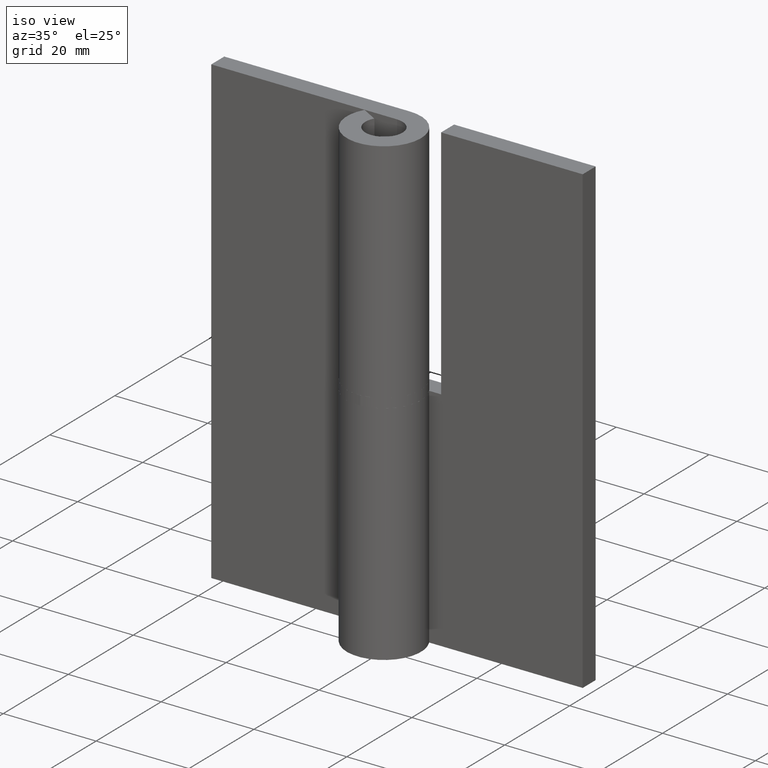
[diagram: clean part render]
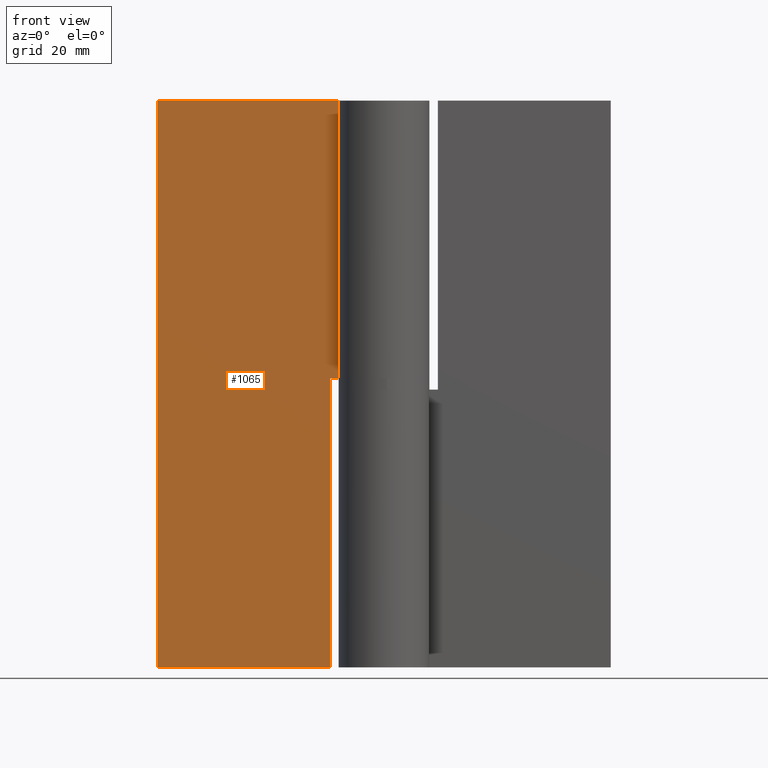
[diagram: tour spotlight — one face highlighted and labeled with its STEP entity id]
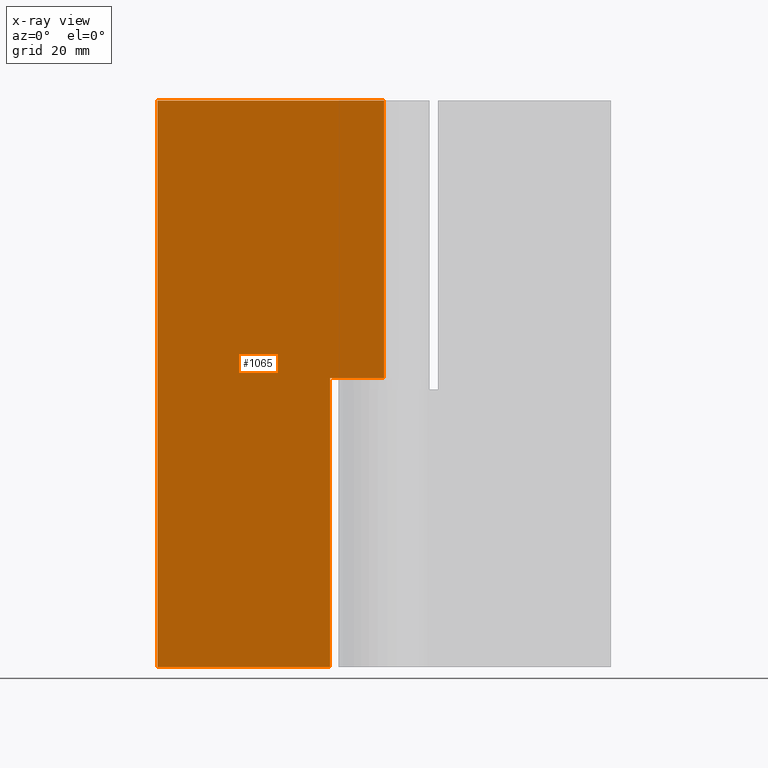
[diagram: x-ray of the same camera — body ghosted, this tour face saturated]
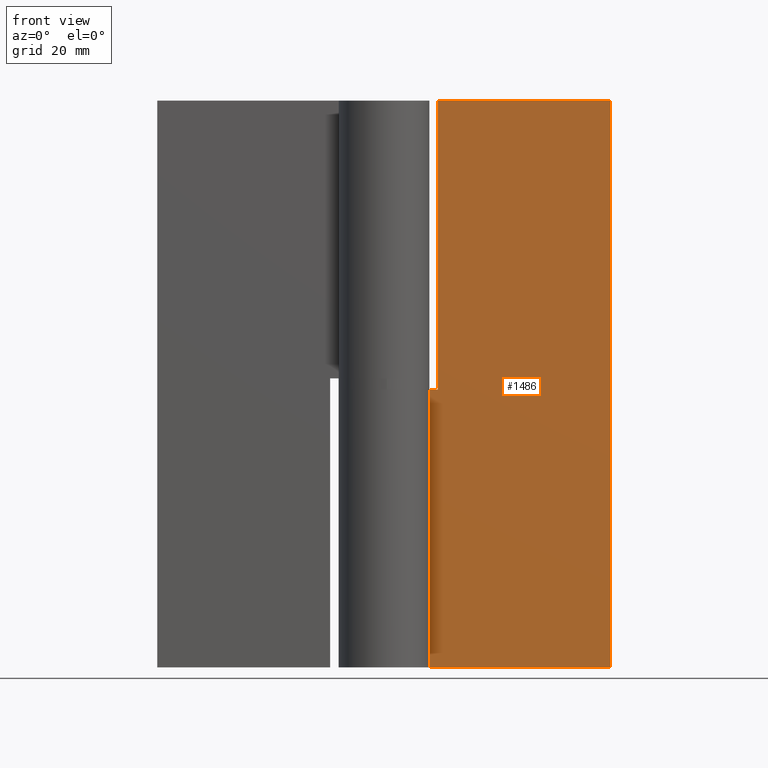
[diagram: tour spotlight — one face highlighted and labeled with its STEP entity id]
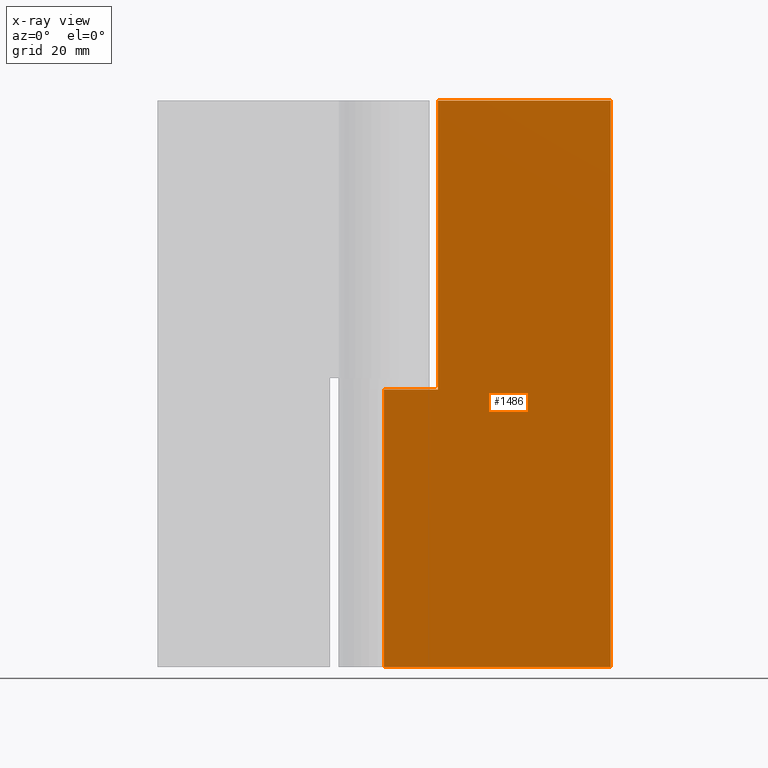
[diagram: x-ray of the same camera — body ghosted, this tour face saturated]
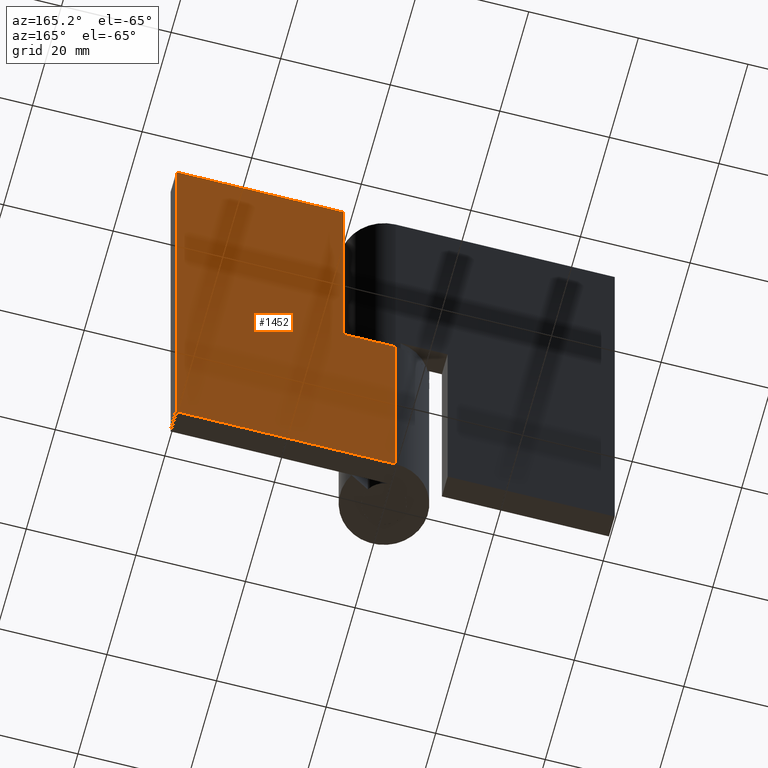
[diagram: tour spotlight — one face highlighted and labeled with its STEP entity id]
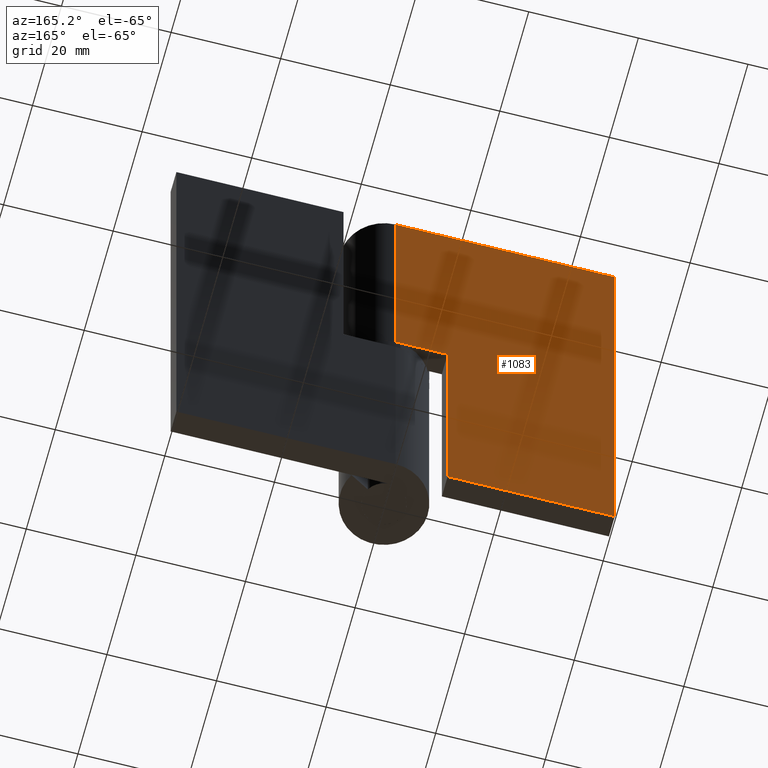
[diagram: tour spotlight — one face highlighted and labeled with its STEP entity id]
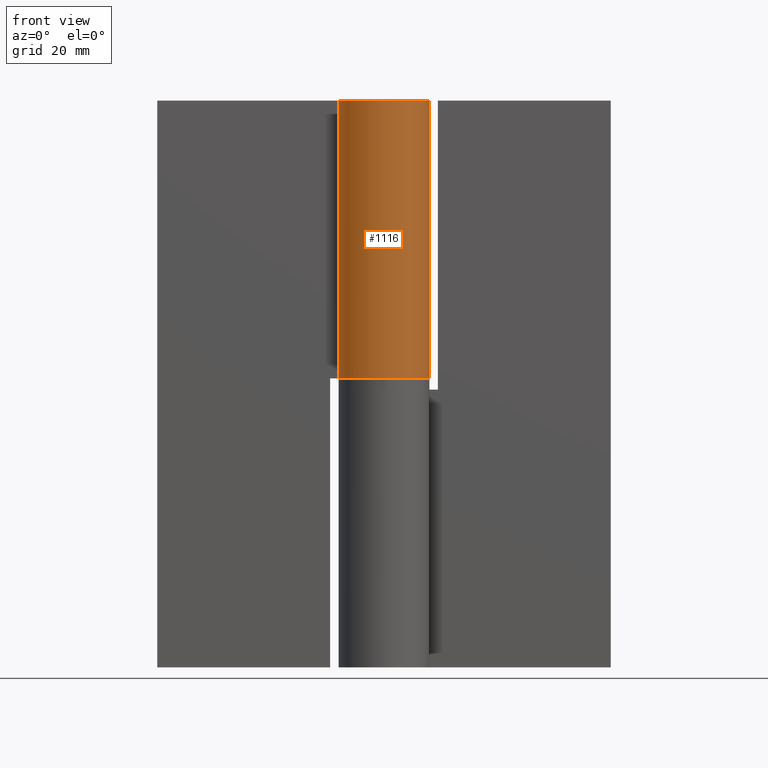
[diagram: tour spotlight — one face highlighted and labeled with its STEP entity id]
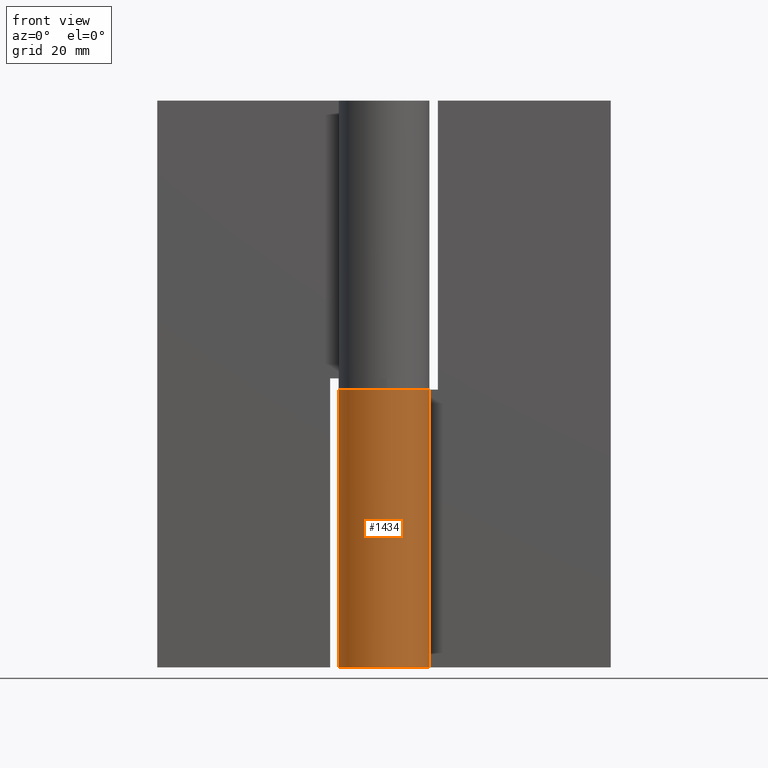
[diagram: tour spotlight — one face highlighted and labeled with its STEP entity id]
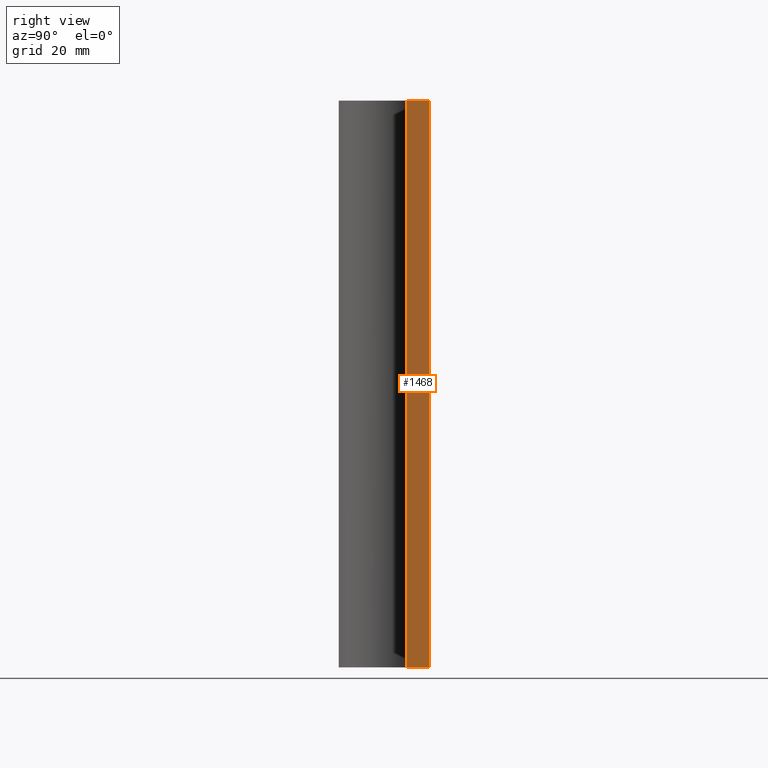
[diagram: tour spotlight — one face highlighted and labeled with its STEP entity id]
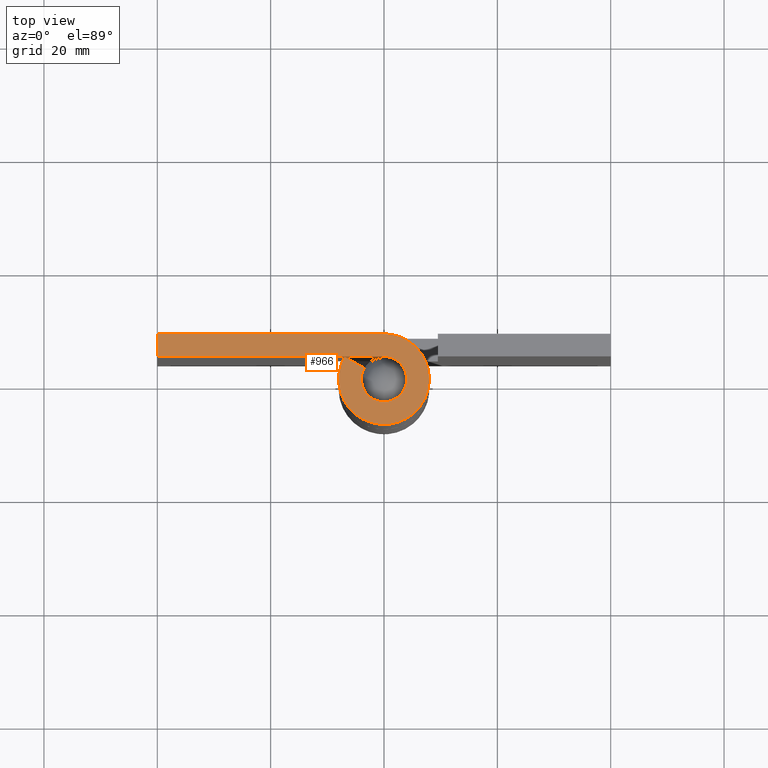
[diagram: tour spotlight — one face highlighted and labeled with its STEP entity id]
A machine part: a face-by-face anatomy tour. The part has 30 B-rep faces; the first image is the clean iso view, then the 8 largest visible faces are spotlighted one at a time (largest first), each with its STEP entity span.

Face 1 — front view, entity #1065. An x-ray twin of the same camera follows (body ghosted, this face saturated) — the face is partly hidden behind the body. In plain terms, the highlighted face is a freeform B-spline surface patch.
Definition (entity closure, byte-faithful):
#790=CARTESIAN_POINT('',(-9.500000000000000,4.0,0.0));
#791=VERTEX_POINT('',#790);
#804=CARTESIAN_POINT('',(-9.500000000000000,4.0,51.0));
#805=VERTEX_POINT('',#804);
#811=CARTESIAN_POINT('',(-9.500000000000000,4.0,0.0));
#812=CARTESIAN_POINT('',(-9.500000000000000,4.0,51.0));
#813=QUASI_UNIFORM_CURVE('',1,(#811,#812),.UNSPECIFIED.,.F.,.U.);
#814=EDGE_CURVE('',#791,#805,#813,.T.);
#854=CARTESIAN_POINT('',(0.0,4.0,51.0));
#855=VERTEX_POINT('',#854);
#875=CARTESIAN_POINT('',(-9.500000000000000,4.0,51.0));
#876=CARTESIAN_POINT('',(0.0,4.0,51.0));
#877=QUASI_UNIFORM_CURVE('',1,(#875,#876),.UNSPECIFIED.,.F.,.U.);
#878=EDGE_CURVE('',#805,#855,#877,.T.);
#931=CARTESIAN_POINT('',(-39.999993000000003,4.0,100.0));
#932=VERTEX_POINT('',#931);
#938=CARTESIAN_POINT('',(0.0,4.0,100.0));
#939=VERTEX_POINT('',#938);
#940=CARTESIAN_POINT('',(-39.999993000000003,4.0,100.0));
#941=CARTESIAN_POINT('',(0.0,4.0,100.0));
#942=QUASI_UNIFORM_CURVE('',1,(#940,#941),.UNSPECIFIED.,.F.,.U.);
#943=EDGE_CURVE('',#932,#939,#942,.T.);
#980=CARTESIAN_POINT('',(-39.999993000000003,4.0,0.0));
#981=VERTEX_POINT('',#980);
#987=CARTESIAN_POINT('',(-39.999993000000003,4.0,0.0));
#988=CARTESIAN_POINT('',(-39.999993000000003,4.0,100.0));
#989=QUASI_UNIFORM_CURVE('',1,(#987,#988),.UNSPECIFIED.,.F.,.U.);
#990=EDGE_CURVE('',#981,#932,#989,.T.);
#1006=CARTESIAN_POINT('',(-39.999993000000003,4.0,0.0));
#1007=CARTESIAN_POINT('',(-9.500000000000000,4.0,0.0));
#1008=QUASI_UNIFORM_CURVE('',1,(#1006,#1007),.UNSPECIFIED.,.F.,.U.);
#1009=EDGE_CURVE('',#981,#791,#1008,.T.);
#1037=CARTESIAN_POINT('',(0.0,4.0,51.0));
#1038=CARTESIAN_POINT('',(0.0,4.0,100.0));
#1039=QUASI_UNIFORM_CURVE('',1,(#1037,#1038),.UNSPECIFIED.,.F.,.U.);
#1040=EDGE_CURVE('',#855,#939,#1039,.T.);
#1052=CARTESIAN_POINT('',(-41.997992197330937,4.0,104.994999806180600));
#1053=CARTESIAN_POINT('',(-41.997992197330937,4.0,-4.995002488389611));
#1054=CARTESIAN_POINT('',(1.998000627842157,4.0,104.994999806180600));
#1055=CARTESIAN_POINT('',(1.998000627842157,4.0,-4.995002488389611));
#1056=B_SPLINE_SURFACE_WITH_KNOTS('',1,1,((#1052,#1054),(#1053,#1055)),.UNSPECIFIED.,.F.,.F.,.U.,(2,2),(2,2),(0.0,109.990002294570200),(0.0,43.995992825173097),.UNSPECIFIED.);
#1057=ORIENTED_EDGE('',*,*,#1009,.T.);
#1058=ORIENTED_EDGE('',*,*,#814,.T.);
#1059=ORIENTED_EDGE('',*,*,#878,.T.);
#1060=ORIENTED_EDGE('',*,*,#1040,.T.);
#1061=ORIENTED_EDGE('',*,*,#943,.F.);
#1062=ORIENTED_EDGE('',*,*,#990,.F.);
#1063=EDGE_LOOP('',(#1057,#1058,#1059,#1060,#1061,#1062));
#1064=FACE_OUTER_BOUND('',#1063,.T.);
#1065=ADVANCED_FACE('',(#1064),#1056,.T.);

Face 2 — front view, entity #1486. An x-ray twin of the same camera follows (body ghosted, this face saturated) — the face is partly hidden behind the body. In plain terms, the highlighted face is a freeform B-spline surface patch.
Definition (entity closure, byte-faithful):
#1175=CARTESIAN_POINT('',(9.500000000000000,4.0,49.0));
#1176=VERTEX_POINT('',#1175);
#1177=CARTESIAN_POINT('',(9.500000000000000,4.0,100.0));
#1178=VERTEX_POINT('',#1177);
#1179=CARTESIAN_POINT('',(9.500000000000000,4.0,49.0));
#1180=CARTESIAN_POINT('',(9.500000000000000,4.0,100.0));
#1181=QUASI_UNIFORM_CURVE('',1,(#1179,#1180),.UNSPECIFIED.,.F.,.U.);
#1182=EDGE_CURVE('',#1176,#1178,#1181,.T.);
#1211=CARTESIAN_POINT('',(0.0,4.0,49.0));
#1212=VERTEX_POINT('',#1211);
#1213=CARTESIAN_POINT('',(0.0,4.0,49.0));
#1214=CARTESIAN_POINT('',(9.500000000000000,4.0,49.0));
#1215=QUASI_UNIFORM_CURVE('',1,(#1213,#1214),.UNSPECIFIED.,.F.,.U.);
#1216=EDGE_CURVE('',#1212,#1176,#1215,.T.);
#1289=CARTESIAN_POINT('',(40.0,4.0,100.0));
#1290=VERTEX_POINT('',#1289);
#1291=CARTESIAN_POINT('',(9.500000000000000,4.0,100.0));
#1292=CARTESIAN_POINT('',(40.0,4.0,100.0));
#1293=QUASI_UNIFORM_CURVE('',1,(#1291,#1292),.UNSPECIFIED.,.F.,.U.);
#1294=EDGE_CURVE('',#1178,#1290,#1293,.T.);
#1311=CARTESIAN_POINT('',(0.0,4.0,0.0));
#1312=VERTEX_POINT('',#1311);
#1367=CARTESIAN_POINT('',(40.0,4.0,0.0));
#1368=VERTEX_POINT('',#1367);
#1374=CARTESIAN_POINT('',(0.0,4.0,0.0));
#1375=CARTESIAN_POINT('',(40.0,4.0,0.0));
#1376=QUASI_UNIFORM_CURVE('',1,(#1374,#1375),.UNSPECIFIED.,.F.,.U.);
#1377=EDGE_CURVE('',#1312,#1368,#1376,.T.);
#1459=CARTESIAN_POINT('',(40.0,4.0,0.0));
#1460=CARTESIAN_POINT('',(40.0,4.0,100.0));
#1461=QUASI_UNIFORM_CURVE('',1,(#1459,#1460),.UNSPECIFIED.,.F.,.U.);
#1462=EDGE_CURVE('',#1368,#1290,#1461,.T.);
#1469=CARTESIAN_POINT('',(-1.997999922472239,4.0,104.994999806180600));
#1470=CARTESIAN_POINT('',(-1.997999922472239,4.0,-4.995002488389611));
#1471=CARTESIAN_POINT('',(41.998000995355838,4.0,104.994999806180600));
#1472=CARTESIAN_POINT('',(41.998000995355838,4.0,-4.995002488389611));
#1473=B_SPLINE_SURFACE_WITH_KNOTS('',1,1,((#1469,#1471),(#1470,#1472)),.UNSPECIFIED.,.F.,.F.,.U.,(2,2),(2,2),(0.0,109.990002294570200),(0.0,43.996000917828077),.UNSPECIFIED.);
#1474=ORIENTED_EDGE('',*,*,#1182,.F.);
#1475=ORIENTED_EDGE('',*,*,#1216,.F.);
#1476=CARTESIAN_POINT('',(0.0,4.0,0.0));
#1477=CARTESIAN_POINT('',(0.0,4.0,49.0));
#1478=QUASI_UNIFORM_CURVE('',1,(#1476,#1477),.UNSPECIFIED.,.F.,.U.);
#1479=EDGE_CURVE('',#1312,#1212,#1478,.T.);
#1480=ORIENTED_EDGE('',*,*,#1479,.F.);
#1481=ORIENTED_EDGE('',*,*,#1377,.T.);
#1482=ORIENTED_EDGE('',*,*,#1462,.T.);
#1483=ORIENTED_EDGE('',*,*,#1294,.F.);
#1484=EDGE_LOOP('',(#1474,#1475,#1480,#1481,#1482,#1483));
#1485=FACE_OUTER_BOUND('',#1484,.T.);
#1486=ADVANCED_FACE('',(#1485),#1473,.T.);

Face 3 — auxiliary view, entity #1452. In plain terms, the highlighted face is a freeform B-spline surface patch.
Definition (entity closure, byte-faithful):
#1184=CARTESIAN_POINT('',(9.500000000000000,8.0,100.0));
#1185=VERTEX_POINT('',#1184);
#1191=CARTESIAN_POINT('',(9.500000000000000,8.0,49.0));
#1192=VERTEX_POINT('',#1191);
#1193=CARTESIAN_POINT('',(9.500000000000000,8.0,49.0));
#1194=CARTESIAN_POINT('',(9.500000000000000,8.0,100.0));
#1195=QUASI_UNIFORM_CURVE('',1,(#1193,#1194),.UNSPECIFIED.,.F.,.U.);
#1196=EDGE_CURVE('',#1192,#1185,#1195,.T.);
#1219=CARTESIAN_POINT('',(0.0,8.0,49.0));
#1220=VERTEX_POINT('',#1219);
#1221=CARTESIAN_POINT('',(0.0,8.0,49.0));
#1222=CARTESIAN_POINT('',(9.500000000000000,8.0,49.0));
#1223=QUASI_UNIFORM_CURVE('',1,(#1221,#1222),.UNSPECIFIED.,.F.,.U.);
#1224=EDGE_CURVE('',#1220,#1192,#1223,.T.);
#1281=CARTESIAN_POINT('',(40.0,8.0,100.0));
#1282=VERTEX_POINT('',#1281);
#1283=CARTESIAN_POINT('',(40.0,8.0,100.0));
#1284=CARTESIAN_POINT('',(9.500000000000000,8.0,100.0));
#1285=QUASI_UNIFORM_CURVE('',1,(#1283,#1284),.UNSPECIFIED.,.F.,.U.);
#1286=EDGE_CURVE('',#1282,#1185,#1285,.T.);
#1339=CARTESIAN_POINT('',(0.0,8.0,0.0));
#1340=VERTEX_POINT('',#1339);
#1360=CARTESIAN_POINT('',(40.0,8.0,0.0));
#1361=VERTEX_POINT('',#1360);
#1362=CARTESIAN_POINT('',(40.0,8.0,0.0));
#1363=CARTESIAN_POINT('',(0.0,8.0,0.0));
#1364=QUASI_UNIFORM_CURVE('',1,(#1362,#1363),.UNSPECIFIED.,.F.,.U.);
#1365=EDGE_CURVE('',#1361,#1340,#1364,.T.);
#1426=CARTESIAN_POINT('',(0.0,8.0,0.0));
#1427=CARTESIAN_POINT('',(0.0,8.0,49.0));
#1428=QUASI_UNIFORM_CURVE('',1,(#1426,#1427),.UNSPECIFIED.,.F.,.U.);
#1429=EDGE_CURVE('',#1340,#1220,#1428,.T.);
#1435=CARTESIAN_POINT('',(-1.997999922472239,8.0,-4.994999806180597));
#1436=CARTESIAN_POINT('',(-1.997999922472239,8.0,104.995002488389600));
#1437=CARTESIAN_POINT('',(41.998000995355838,8.0,-4.994999806180597));
#1438=CARTESIAN_POINT('',(41.998000995355838,8.0,104.995002488389600));
#1439=B_SPLINE_SURFACE_WITH_KNOTS('',1,1,((#1435,#1437),(#1436,#1438)),.UNSPECIFIED.,.F.,.F.,.U.,(2,2),(2,2),(0.0,109.990002294570200),(0.0,43.996000917828077),.UNSPECIFIED.);
#1440=ORIENTED_EDGE('',*,*,#1196,.T.);
#1441=ORIENTED_EDGE('',*,*,#1286,.F.);
#1442=CARTESIAN_POINT('',(40.0,8.0,0.0));
#1443=CARTESIAN_POINT('',(40.0,8.0,100.0));
#1444=QUASI_UNIFORM_CURVE('',1,(#1442,#1443),.UNSPECIFIED.,.F.,.U.);
#1445=EDGE_CURVE('',#1361,#1282,#1444,.T.);
#1446=ORIENTED_EDGE('',*,*,#1445,.F.);
#1447=ORIENTED_EDGE('',*,*,#1365,.T.);
#1448=ORIENTED_EDGE('',*,*,#1429,.T.);
#1449=ORIENTED_EDGE('',*,*,#1224,.T.);
#1450=EDGE_LOOP('',(#1440,#1441,#1446,#1447,#1448,#1449));
#1451=FACE_OUTER_BOUND('',#1450,.T.);
#1452=ADVANCED_FACE('',(#1451),#1439,.T.);

Face 4 — auxiliary view, entity #1083. In plain terms, the highlighted face is a freeform B-spline surface patch.
Definition (entity closure, byte-faithful):
#788=CARTESIAN_POINT('',(-9.500000000000000,8.0,0.0));
#789=VERTEX_POINT('',#788);
#797=CARTESIAN_POINT('',(-9.500000000000000,8.0,51.0));
#798=VERTEX_POINT('',#797);
#799=CARTESIAN_POINT('',(-9.500000000000000,8.0,0.0));
#800=CARTESIAN_POINT('',(-9.500000000000000,8.0,51.0));
#801=QUASI_UNIFORM_CURVE('',1,(#799,#800),.UNSPECIFIED.,.F.,.U.);
#802=EDGE_CURVE('',#789,#798,#801,.T.);
#824=CARTESIAN_POINT('',(0.0,8.0,51.0));
#825=VERTEX_POINT('',#824);
#881=CARTESIAN_POINT('',(-9.500000000000000,8.0,51.0));
#882=CARTESIAN_POINT('',(0.0,8.0,51.0));
#883=QUASI_UNIFORM_CURVE('',1,(#881,#882),.UNSPECIFIED.,.F.,.U.);
#884=EDGE_CURVE('',#798,#825,#883,.T.);
#903=CARTESIAN_POINT('',(4.898425E-016,8.0,100.0));
#904=VERTEX_POINT('',#903);
#924=CARTESIAN_POINT('',(-39.999993000000003,8.0,100.0));
#925=VERTEX_POINT('',#924);
#926=CARTESIAN_POINT('',(4.898425E-016,8.0,100.0));
#927=CARTESIAN_POINT('',(-39.999993000000003,8.0,100.0));
#928=QUASI_UNIFORM_CURVE('',1,(#926,#927),.UNSPECIFIED.,.F.,.U.);
#929=EDGE_CURVE('',#904,#925,#928,.T.);
#973=CARTESIAN_POINT('',(-39.999993000000003,8.0,0.0));
#974=VERTEX_POINT('',#973);
#975=CARTESIAN_POINT('',(-39.999993000000003,8.0,0.0));
#976=CARTESIAN_POINT('',(-39.999993000000003,8.0,100.0));
#977=QUASI_UNIFORM_CURVE('',1,(#975,#976),.UNSPECIFIED.,.F.,.U.);
#978=EDGE_CURVE('',#974,#925,#977,.T.);
#1000=CARTESIAN_POINT('',(-9.500000000000000,8.0,0.0));
#1001=CARTESIAN_POINT('',(-39.999993000000003,8.0,0.0));
#1002=QUASI_UNIFORM_CURVE('',1,(#1000,#1001),.UNSPECIFIED.,.F.,.U.);
#1003=EDGE_CURVE('',#789,#974,#1002,.T.);
#1066=CARTESIAN_POINT('',(-41.997992197330937,8.0,-4.994999806180597));
#1067=CARTESIAN_POINT('',(-41.997992197330937,8.0,104.995002488389600));
#1068=CARTESIAN_POINT('',(1.998000627842157,8.0,-4.994999806180598));
#1069=CARTESIAN_POINT('',(1.998000627842157,8.0,104.995002488389600));
#1070=B_SPLINE_SURFACE_WITH_KNOTS('',1,1,((#1066,#1068),(#1067,#1069)),.UNSPECIFIED.,.F.,.F.,.U.,(2,2),(2,2),(0.0,109.990002294570200),(0.0,43.995992825173097),.UNSPECIFIED.);
#1071=ORIENTED_EDGE('',*,*,#884,.F.);
#1072=ORIENTED_EDGE('',*,*,#802,.F.);
#1073=ORIENTED_EDGE('',*,*,#1003,.T.);
#1074=ORIENTED_EDGE('',*,*,#978,.T.);
#1075=ORIENTED_EDGE('',*,*,#929,.F.);
#1076=CARTESIAN_POINT('',(0.0,8.0,51.0));
#1077=CARTESIAN_POINT('',(4.898425E-016,8.0,100.0));
#1078=QUASI_UNIFORM_CURVE('',1,(#1076,#1077),.UNSPECIFIED.,.F.,.U.);
#1079=EDGE_CURVE('',#825,#904,#1078,.T.);
#1080=ORIENTED_EDGE('',*,*,#1079,.F.);
#1081=EDGE_LOOP('',(#1071,#1072,#1073,#1074,#1075,#1080));
#1082=FACE_OUTER_BOUND('',#1081,.T.);
#1083=ADVANCED_FACE('',(#1082),#1070,.T.);

Face 5 — front view, entity #1116. In plain terms, the highlighted face is a freeform B-spline surface patch.
Definition (entity closure, byte-faithful):
#824=CARTESIAN_POINT('',(0.0,8.0,51.0));
#825=VERTEX_POINT('',#824);
#826=CARTESIAN_POINT('',(-6.956831175183141,3.950000000000000,51.0));
#827=VERTEX_POINT('',#826);
#828=CARTESIAN_POINT('',(0.0,8.0,51.0));
#829=CARTESIAN_POINT('',(6.127181380343105,8.0,51.000000000000007));
#830=CARTESIAN_POINT('',(7.723666074339942,2.084462130164573,51.0));
#831=CARTESIAN_POINT('',(9.320150768336779,-3.831075739670857,51.000000000000007));
#832=CARTESIAN_POINT('',(4.024922359499619,-6.913754406977445,51.0));
#833=CARTESIAN_POINT('',(-1.270306049337536,-9.996433074284029,51.000000000000007));
#834=CARTESIAN_POINT('',(-5.626216515532540,-5.687326939815303,51.0));
#835=CARTESIAN_POINT('',(-9.982126981727548,-1.378220805346572,51.000000000000007));
#836=CARTESIAN_POINT('',(-6.956831175183139,3.950000000000000,51.0));
#844=(BOUNDED_CURVE()B_SPLINE_CURVE(2,(#828,#829,#830,#831,#832,#833,#834,#835,#836),.UNSPECIFIED.,.F.,.U.)B_SPLINE_CURVE_WITH_KNOTS((3,2,2,2,3),(0.0,0.250000000000000,0.500000000000000,0.750000000000000,1.0),.UNSPECIFIED.)CURVE()GEOMETRIC_REPRESENTATION_ITEM()RATIONAL_B_SPLINE_CURVE((1.0,0.793901053743655,1.0,0.793901053743655,1.0,0.793901053743655,1.0,0.793901053743655,1.0))REPRESENTATION_ITEM(''));
#845=EDGE_CURVE('',#825,#827,#844,.T.);
#896=CARTESIAN_POINT('',(-6.956831175183141,3.950000000000000,100.0));
#897=VERTEX_POINT('',#896);
#903=CARTESIAN_POINT('',(4.898425E-016,8.0,100.0));
#904=VERTEX_POINT('',#903);
#905=CARTESIAN_POINT('',(0.0,8.0,100.0));
#906=CARTESIAN_POINT('',(6.127181380343105,8.0,100.0));
#907=CARTESIAN_POINT('',(7.723666074339942,2.084462130164574,100.0));
#908=CARTESIAN_POINT('',(9.320150768336779,-3.831075739670848,100.0));
#909=CARTESIAN_POINT('',(4.024922359499626,-6.913754406977439,100.0));
#910=CARTESIAN_POINT('',(-1.270306049337526,-9.996433074284029,100.0));
#911=CARTESIAN_POINT('',(-5.626216515532533,-5.687326939815309,100.0));
#912=CARTESIAN_POINT('',(-9.982126981727545,-1.378220805346582,100.0));
#913=CARTESIAN_POINT('',(-6.956831175183142,3.949999999999993,100.0));
#921=(BOUNDED_CURVE()B_SPLINE_CURVE(2,(#905,#906,#907,#908,#909,#910,#911,#912,#913),.UNSPECIFIED.,.F.,.U.)B_SPLINE_CURVE_WITH_KNOTS((3,2,2,2,3),(0.0,0.250000000000000,0.500000000000000,0.750000000000000,1.0),.UNSPECIFIED.)CURVE()GEOMETRIC_REPRESENTATION_ITEM()RATIONAL_B_SPLINE_CURVE((1.0,0.793901053743655,1.0,0.793901053743655,1.0,0.793901053743655,1.0,0.793901053743655,1.0))REPRESENTATION_ITEM(''));
#922=EDGE_CURVE('',#904,#897,#921,.T.);
#1076=CARTESIAN_POINT('',(0.0,8.0,51.0));
#1077=CARTESIAN_POINT('',(4.898425E-016,8.0,100.0));
#1078=QUASI_UNIFORM_CURVE('',1,(#1076,#1077),.UNSPECIFIED.,.F.,.U.);
#1079=EDGE_CURVE('',#825,#904,#1078,.T.);
#1084=CARTESIAN_POINT('',(-0.267005654805695,7.995543007219820,49.774999999999991));
#1085=CARTESIAN_POINT('',(-0.267005654805695,7.995543007219820,101.255624999999990));
#1086=CARTESIAN_POINT('',(9.606667669763773,8.325267531118154,49.774999999999999));
#1087=CARTESIAN_POINT('',(9.606667669763773,8.325267531118154,101.255625000000010));
#1088=CARTESIAN_POINT('',(7.876334806224579,-1.401195925006634,49.774999999999991));
#1089=CARTESIAN_POINT('',(7.876334806224579,-1.401195925006634,101.255624999999990));
#1090=CARTESIAN_POINT('',(6.146001942685388,-11.127659381131419,49.774999999999999));
#1091=CARTESIAN_POINT('',(6.146001942685388,-11.127659381131419,101.255625000000010));
#1092=CARTESIAN_POINT('',(-3.008158519212143,-7.412892979349652,49.774999999999991));
#1093=CARTESIAN_POINT('',(-3.008158519212143,-7.412892979349652,101.255624999999990));
#1094=CARTESIAN_POINT('',(-12.162318981109674,-3.698126577567885,49.774999999999999));
#1095=CARTESIAN_POINT('',(-12.162318981109674,-3.698126577567885,101.255625000000010));
#1096=CARTESIAN_POINT('',(-6.625472158270092,4.483650151381998,49.774999999999991));
#1097=CARTESIAN_POINT('',(-6.625472158270092,4.483650151381998,101.255624999999990));
#1105=(BOUNDED_SURFACE()B_SPLINE_SURFACE(1,2,((#1084,#1086,#1088,#1090,#1092,#1094,#1096),(#1085,#1087,#1089,#1091,#1093,#1095,#1097)),.UNSPECIFIED.,.F.,.F.,.U.)B_SPLINE_SURFACE_WITH_KNOTS((2,2),(3,2,2,3),(0.0,51.480625000000018),(0.0,15.263217046341120,30.526434092682241,45.789651139023363),.UNSPECIFIED.)GEOMETRIC_REPRESENTATION_ITEM()RATIONAL_B_SPLINE_SURFACE(((1.0,0.629320391049838,1.0,0.629320391049838,1.0,0.629320391049838,1.0),(1.0,0.629320391049838,1.0,0.629320391049838,1.0,0.629320391049838,1.0)))REPRESENTATION_ITEM('')SURFACE());
#1106=ORIENTED_EDGE('',*,*,#845,.F.);
#1107=ORIENTED_EDGE('',*,*,#1079,.T.);
#1108=ORIENTED_EDGE('',*,*,#922,.T.);
#1109=CARTESIAN_POINT('',(-6.956831175183141,3.950000000000000,51.0));
#1110=CARTESIAN_POINT('',(-6.956831175183141,3.950000000000000,100.0));
#1111=QUASI_UNIFORM_CURVE('',1,(#1109,#1110),.UNSPECIFIED.,.F.,.U.);
#1112=EDGE_CURVE('',#827,#897,#1111,.T.);
#1113=ORIENTED_EDGE('',*,*,#1112,.F.);
#1114=EDGE_LOOP('',(#1106,#1107,#1108,#1113));
#1115=FACE_OUTER_BOUND('',#1114,.T.);
#1116=ADVANCED_FACE('',(#1115),#1105,.T.);

Face 6 — front view, entity #1434. In plain terms, the highlighted face is a freeform B-spline surface patch.
Definition (entity closure, byte-faithful):
#1219=CARTESIAN_POINT('',(0.0,8.0,49.0));
#1220=VERTEX_POINT('',#1219);
#1226=CARTESIAN_POINT('',(6.956831175183141,3.950000000000000,49.0));
#1227=VERTEX_POINT('',#1226);
#1228=CARTESIAN_POINT('',(6.956831175183139,3.949999999999999,49.0));
#1229=CARTESIAN_POINT('',(9.982126981727548,-1.378220805346570,49.000000000000014));
#1230=CARTESIAN_POINT('',(5.626216515532541,-5.687326939815301,49.0));
#1231=CARTESIAN_POINT('',(1.270306049337540,-9.996433074284029,49.000000000000014));
#1232=CARTESIAN_POINT('',(-4.024922359499617,-6.913754406977446,49.0));
#1233=CARTESIAN_POINT('',(-9.320150768336777,-3.831075739670859,49.000000000000014));
#1234=CARTESIAN_POINT('',(-7.723666074339943,2.084462130164570,49.0));
#1235=CARTESIAN_POINT('',(-6.127181380343108,8.0,49.000000000000014));
#1236=CARTESIAN_POINT('',(0.0,8.0,49.0));
#1244=(BOUNDED_CURVE()B_SPLINE_CURVE(2,(#1228,#1229,#1230,#1231,#1232,#1233,#1234,#1235,#1236),.UNSPECIFIED.,.F.,.U.)B_SPLINE_CURVE_WITH_KNOTS((3,2,2,2,3),(0.0,0.250000000000000,0.500000000000000,0.750000000000000,1.0),.UNSPECIFIED.)CURVE()GEOMETRIC_REPRESENTATION_ITEM()RATIONAL_B_SPLINE_CURVE((1.0,0.793901053743655,1.0,0.793901053743655,1.0,0.793901053743655,1.0,0.793901053743655,1.0))REPRESENTATION_ITEM(''));
#1245=EDGE_CURVE('',#1227,#1220,#1244,.T.);
#1332=CARTESIAN_POINT('',(6.956831175183141,3.950000000000000,0.0));
#1333=VERTEX_POINT('',#1332);
#1339=CARTESIAN_POINT('',(0.0,8.0,0.0));
#1340=VERTEX_POINT('',#1339);
#1341=CARTESIAN_POINT('',(6.956831175183138,3.950000000000002,0.0));
#1342=CARTESIAN_POINT('',(9.982126981727548,-1.378220805346568,0.0));
#1343=CARTESIAN_POINT('',(5.626216515532542,-5.687326939815300,0.0));
#1344=CARTESIAN_POINT('',(1.270306049337542,-9.996433074284029,0.0));
#1345=CARTESIAN_POINT('',(-4.024922359499616,-6.913754406977446,0.0));
#1346=CARTESIAN_POINT('',(-9.320150768336777,-3.831075739670861,0.0));
#1347=CARTESIAN_POINT('',(-7.723666074339943,2.084462130164569,0.0));
#1348=CARTESIAN_POINT('',(-6.127181380343109,8.0,0.0));
#1349=CARTESIAN_POINT('',(0.0,8.0,0.0));
#1357=(BOUNDED_CURVE()B_SPLINE_CURVE(2,(#1341,#1342,#1343,#1344,#1345,#1346,#1347,#1348,#1349),.UNSPECIFIED.,.F.,.U.)B_SPLINE_CURVE_WITH_KNOTS((3,2,2,2,3),(0.0,0.250000000000000,0.500000000000000,0.750000000000000,1.0),.UNSPECIFIED.)CURVE()GEOMETRIC_REPRESENTATION_ITEM()RATIONAL_B_SPLINE_CURVE((1.0,0.793901053743655,1.0,0.793901053743655,1.0,0.793901053743655,1.0,0.793901053743655,1.0))REPRESENTATION_ITEM(''));
#1358=EDGE_CURVE('',#1333,#1340,#1357,.T.);
#1388=CARTESIAN_POINT('',(6.956831175183141,3.950000000000000,0.0));
#1389=CARTESIAN_POINT('',(6.956831175183141,3.950000000000000,49.0));
#1390=QUASI_UNIFORM_CURVE('',1,(#1388,#1389),.UNSPECIFIED.,.F.,.U.);
#1391=EDGE_CURVE('',#1333,#1227,#1390,.T.);
#1402=CARTESIAN_POINT('',(6.821121314832735,4.179988517727590,-1.225000000000001));
#1403=CARTESIAN_POINT('',(6.821121314832735,4.179988517727590,50.255625000000009));
#1404=CARTESIAN_POINT('',(11.982977249723699,-4.243394798339984,-1.225000000000001));
#1405=CARTESIAN_POINT('',(11.982977249723699,-4.243394798339984,50.255625000000002));
#1406=CARTESIAN_POINT('',(2.670454873870168,-7.541131928737424,-1.225000000000001));
#1407=CARTESIAN_POINT('',(2.670454873870168,-7.541131928737424,50.255625000000009));
#1408=CARTESIAN_POINT('',(-6.642067501983363,-10.838869059134865,-1.225000000000001));
#1409=CARTESIAN_POINT('',(-6.642067501983363,-10.838869059134865,50.255625000000002));
#1410=CARTESIAN_POINT('',(-7.931558890990480,-1.044209537760415,-1.225000000000001));
#1411=CARTESIAN_POINT('',(-7.931558890990480,-1.044209537760415,50.255625000000009));
#1412=CARTESIAN_POINT('',(-9.221050279997597,8.750449983614031,-1.225000000000001));
#1413=CARTESIAN_POINT('',(-9.221050279997597,8.750449983614031,50.255625000000002));
#1414=CARTESIAN_POINT('',(0.627672765822754,7.975338669865019,-1.225000000000001));
#1415=CARTESIAN_POINT('',(0.627672765822754,7.975338669865019,50.255625000000009));
#1423=(BOUNDED_SURFACE()B_SPLINE_SURFACE(1,2,((#1402,#1404,#1406,#1408,#1410,#1412,#1414),(#1403,#1405,#1407,#1409,#1411,#1413,#1415)),.UNSPECIFIED.,.F.,.F.,.U.)B_SPLINE_SURFACE_WITH_KNOTS((2,2),(3,2,2,3),(0.0,51.480625000000011),(0.0,15.263217046341120,30.526434092682241,45.789651139023363),.UNSPECIFIED.)GEOMETRIC_REPRESENTATION_ITEM()RATIONAL_B_SPLINE_SURFACE(((1.0,0.629320391049838,1.0,0.629320391049838,1.0,0.629320391049838,1.0),(1.0,0.629320391049838,1.0,0.629320391049838,1.0,0.629320391049838,1.0)))REPRESENTATION_ITEM('')SURFACE());
#1424=ORIENTED_EDGE('',*,*,#1391,.T.);
#1425=ORIENTED_EDGE('',*,*,#1245,.T.);
#1426=CARTESIAN_POINT('',(0.0,8.0,0.0));
#1427=CARTESIAN_POINT('',(0.0,8.0,49.0));
#1428=QUASI_UNIFORM_CURVE('',1,(#1426,#1427),.UNSPECIFIED.,.F.,.U.);
#1429=EDGE_CURVE('',#1340,#1220,#1428,.T.);
#1430=ORIENTED_EDGE('',*,*,#1429,.F.);
#1431=ORIENTED_EDGE('',*,*,#1358,.F.);
#1432=EDGE_LOOP('',(#1424,#1425,#1430,#1431));
#1433=FACE_OUTER_BOUND('',#1432,.T.);
#1434=ADVANCED_FACE('',(#1433),#1423,.T.);

Face 7 — right view, entity #1468. In plain terms, the highlighted face is a freeform B-spline surface patch.
Definition (entity closure, byte-faithful):
#1281=CARTESIAN_POINT('',(40.0,8.0,100.0));
#1282=VERTEX_POINT('',#1281);
#1289=CARTESIAN_POINT('',(40.0,4.0,100.0));
#1290=VERTEX_POINT('',#1289);
#1296=CARTESIAN_POINT('',(40.0,4.0,100.0));
#1297=CARTESIAN_POINT('',(40.0,8.0,100.0));
#1298=QUASI_UNIFORM_CURVE('',1,(#1296,#1297),.UNSPECIFIED.,.F.,.U.);
#1299=EDGE_CURVE('',#1290,#1282,#1298,.T.);
#1360=CARTESIAN_POINT('',(40.0,8.0,0.0));
#1361=VERTEX_POINT('',#1360);
#1367=CARTESIAN_POINT('',(40.0,4.0,0.0));
#1368=VERTEX_POINT('',#1367);
#1369=CARTESIAN_POINT('',(40.0,4.0,0.0));
#1370=CARTESIAN_POINT('',(40.0,8.0,0.0));
#1371=QUASI_UNIFORM_CURVE('',1,(#1369,#1370),.UNSPECIFIED.,.F.,.U.);
#1372=EDGE_CURVE('',#1368,#1361,#1371,.T.);
#1442=CARTESIAN_POINT('',(40.0,8.0,0.0));
#1443=CARTESIAN_POINT('',(40.0,8.0,100.0));
#1444=QUASI_UNIFORM_CURVE('',1,(#1442,#1443),.UNSPECIFIED.,.F.,.U.);
#1445=EDGE_CURVE('',#1361,#1282,#1444,.T.);
#1453=CARTESIAN_POINT('',(40.0,3.800200007752776,104.994999806180600));
#1454=CARTESIAN_POINT('',(40.0,3.800200007752776,-4.995002488389611));
#1455=CARTESIAN_POINT('',(40.0,8.199800099535585,104.994999806180600));
#1456=CARTESIAN_POINT('',(40.0,8.199800099535585,-4.995002488389611));
#1457=B_SPLINE_SURFACE_WITH_KNOTS('',1,1,((#1453,#1455),(#1454,#1456)),.UNSPECIFIED.,.F.,.F.,.U.,(2,2),(2,2),(0.0,109.990002294570200),(0.0,4.399600091782808),.UNSPECIFIED.);
#1458=ORIENTED_EDGE('',*,*,#1299,.F.);
#1459=CARTESIAN_POINT('',(40.0,4.0,0.0));
#1460=CARTESIAN_POINT('',(40.0,4.0,100.0));
#1461=QUASI_UNIFORM_CURVE('',1,(#1459,#1460),.UNSPECIFIED.,.F.,.U.);
#1462=EDGE_CURVE('',#1368,#1290,#1461,.T.);
#1463=ORIENTED_EDGE('',*,*,#1462,.F.);
#1464=ORIENTED_EDGE('',*,*,#1372,.T.);
#1465=ORIENTED_EDGE('',*,*,#1445,.T.);
#1466=EDGE_LOOP('',(#1458,#1463,#1464,#1465));
#1467=FACE_OUTER_BOUND('',#1466,.T.);
#1468=ADVANCED_FACE('',(#1467),#1457,.T.);

Face 8 — top view, entity #966. In plain terms, the highlighted face is a freeform B-spline surface patch.
Definition (entity closure, byte-faithful):
#889=CARTESIAN_POINT('',(-42.397591169601327,-8.799121342157855,100.0));
#890=CARTESIAN_POINT('',(10.397581124932980,-8.799121342157855,100.0));
#891=CARTESIAN_POINT('',(-42.397591169601327,8.799196657571669,100.0));
#892=CARTESIAN_POINT('',(10.397581124932980,8.799196657571669,100.0));
#893=B_SPLINE_SURFACE_WITH_KNOTS('',1,1,((#889,#891),(#890,#892)),.UNSPECIFIED.,.F.,.F.,.U.,(2,2),(2,2),(0.0,52.795172294534296),(0.0,17.598317999729520),.UNSPECIFIED.);
#894=CARTESIAN_POINT('',(-3.478415587591571,1.975000000000000,100.0));
#895=VERTEX_POINT('',#894);
#896=CARTESIAN_POINT('',(-6.956831175183141,3.950000000000000,100.0));
#897=VERTEX_POINT('',#896);
#898=CARTESIAN_POINT('',(-3.478415587591571,1.975000000000000,100.0));
#899=CARTESIAN_POINT('',(-6.956831175183141,3.950000000000000,100.0));
#900=QUASI_UNIFORM_CURVE('',1,(#898,#899),.UNSPECIFIED.,.F.,.U.);
#901=EDGE_CURVE('',#895,#897,#900,.T.);
#902=ORIENTED_EDGE('',*,*,#901,.T.);
#903=CARTESIAN_POINT('',(4.898425E-016,8.0,100.0));
#904=VERTEX_POINT('',#903);
#905=CARTESIAN_POINT('',(0.0,8.0,100.0));
#906=CARTESIAN_POINT('',(6.127181380343105,8.0,100.0));
#907=CARTESIAN_POINT('',(7.723666074339942,2.084462130164574,100.0));
#908=CARTESIAN_POINT('',(9.320150768336779,-3.831075739670848,100.0));
#909=CARTESIAN_POINT('',(4.024922359499626,-6.913754406977439,100.0));
#910=CARTESIAN_POINT('',(-1.270306049337526,-9.996433074284029,100.0));
#911=CARTESIAN_POINT('',(-5.626216515532533,-5.687326939815309,100.0));
#912=CARTESIAN_POINT('',(-9.982126981727545,-1.378220805346582,100.0));
#913=CARTESIAN_POINT('',(-6.956831175183142,3.949999999999993,100.0));
#921=(BOUNDED_CURVE()B_SPLINE_CURVE(2,(#905,#906,#907,#908,#909,#910,#911,#912,#913),.UNSPECIFIED.,.F.,.U.)B_SPLINE_CURVE_WITH_KNOTS((3,2,2,2,3),(0.0,0.250000000000000,0.500000000000000,0.750000000000000,1.0),.UNSPECIFIED.)CURVE()GEOMETRIC_REPRESENTATION_ITEM()RATIONAL_B_SPLINE_CURVE((1.0,0.793901053743655,1.0,0.793901053743655,1.0,0.793901053743655,1.0,0.793901053743655,1.0))REPRESENTATION_ITEM(''));
#922=EDGE_CURVE('',#904,#897,#921,.T.);
#923=ORIENTED_EDGE('',*,*,#922,.F.);
#924=CARTESIAN_POINT('',(-39.999993000000003,8.0,100.0));
#925=VERTEX_POINT('',#924);
#926=CARTESIAN_POINT('',(4.898425E-016,8.0,100.0));
#927=CARTESIAN_POINT('',(-39.999993000000003,8.0,100.0));
#928=QUASI_UNIFORM_CURVE('',1,(#926,#927),.UNSPECIFIED.,.F.,.U.);
#929=EDGE_CURVE('',#904,#925,#928,.T.);
#930=ORIENTED_EDGE('',*,*,#929,.T.);
#931=CARTESIAN_POINT('',(-39.999993000000003,4.0,100.0));
#932=VERTEX_POINT('',#931);
#933=CARTESIAN_POINT('',(-39.999993000000003,8.0,100.0));
#934=CARTESIAN_POINT('',(-39.999993000000003,4.0,100.0));
#935=QUASI_UNIFORM_CURVE('',1,(#933,#934),.UNSPECIFIED.,.F.,.U.);
#936=EDGE_CURVE('',#925,#932,#935,.T.);
#937=ORIENTED_EDGE('',*,*,#936,.T.);
#938=CARTESIAN_POINT('',(0.0,4.0,100.0));
#939=VERTEX_POINT('',#938);
#940=CARTESIAN_POINT('',(-39.999993000000003,4.0,100.0));
#941=CARTESIAN_POINT('',(0.0,4.0,100.0));
#942=QUASI_UNIFORM_CURVE('',1,(#940,#941),.UNSPECIFIED.,.F.,.U.);
#943=EDGE_CURVE('',#932,#939,#942,.T.);
#944=ORIENTED_EDGE('',*,*,#943,.T.);
#945=CARTESIAN_POINT('',(0.0,4.0,100.0));
#946=CARTESIAN_POINT('',(3.063590690171552,4.0,100.0));
#947=CARTESIAN_POINT('',(3.861833037169971,1.042231065082287,100.0));
#948=CARTESIAN_POINT('',(4.660075384168390,-1.915537869835425,100.0));
#949=CARTESIAN_POINT('',(2.012461179749813,-3.456877203488720,100.0));
#950=CARTESIAN_POINT('',(-0.635153024668763,-4.998216537142015,100.0));
#951=CARTESIAN_POINT('',(-2.813108257766267,-2.843663469907654,100.0));
#952=CARTESIAN_POINT('',(-4.991063490863772,-0.689110402673291,100.0));
#953=CARTESIAN_POINT('',(-3.478415587591571,1.974999999999996,100.0));
#961=(BOUNDED_CURVE()B_SPLINE_CURVE(2,(#945,#946,#947,#948,#949,#950,#951,#952,#953),.UNSPECIFIED.,.F.,.U.)B_SPLINE_CURVE_WITH_KNOTS((3,2,2,2,3),(0.0,0.250000000000000,0.500000000000000,0.750000000000000,1.0),.UNSPECIFIED.)CURVE()GEOMETRIC_REPRESENTATION_ITEM()RATIONAL_B_SPLINE_CURVE((1.0,0.793901053743655,1.0,0.793901053743655,1.0,0.793901053743655,1.0,0.793901053743655,1.0))REPRESENTATION_ITEM(''));
#962=EDGE_CURVE('',#939,#895,#961,.T.);
#963=ORIENTED_EDGE('',*,*,#962,.T.);
#964=EDGE_LOOP('',(#902,#923,#930,#937,#944,#963));
#965=FACE_OUTER_BOUND('',#964,.T.);
#966=ADVANCED_FACE('',(#965),#893,.T.);